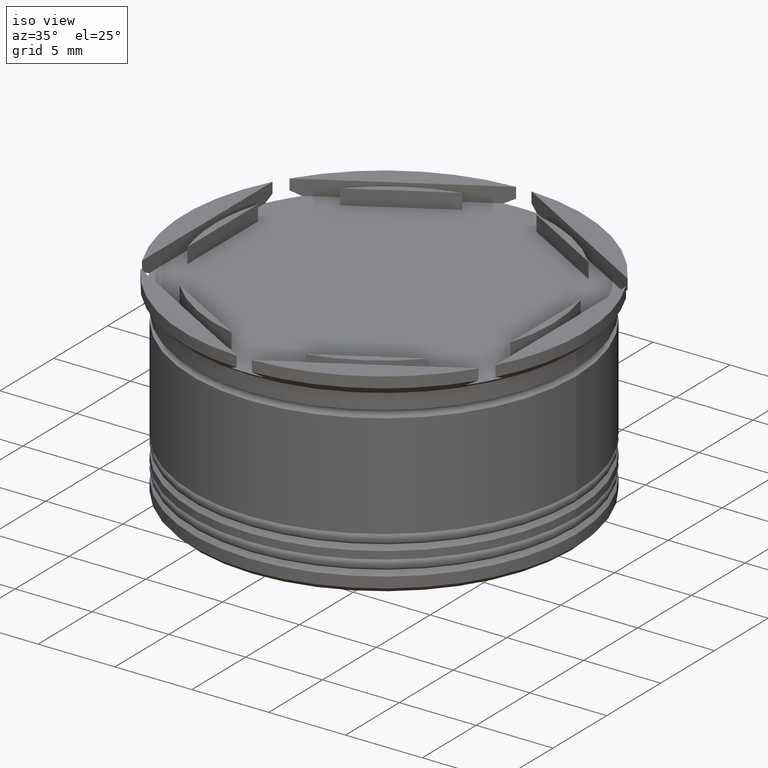
[diagram: clean part render]
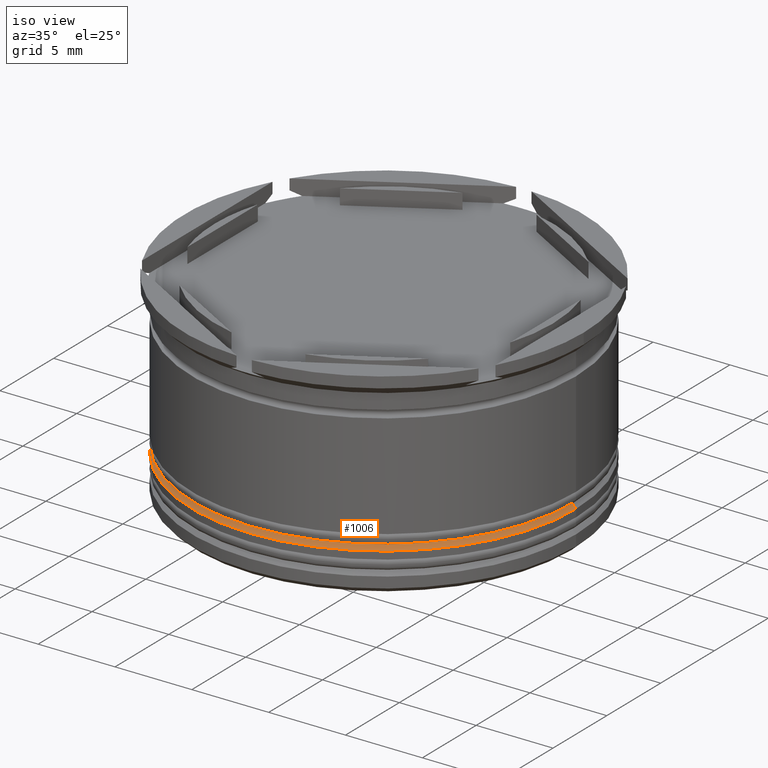
[diagram: same view with one face highlighted and labeled with its STEP entity id]
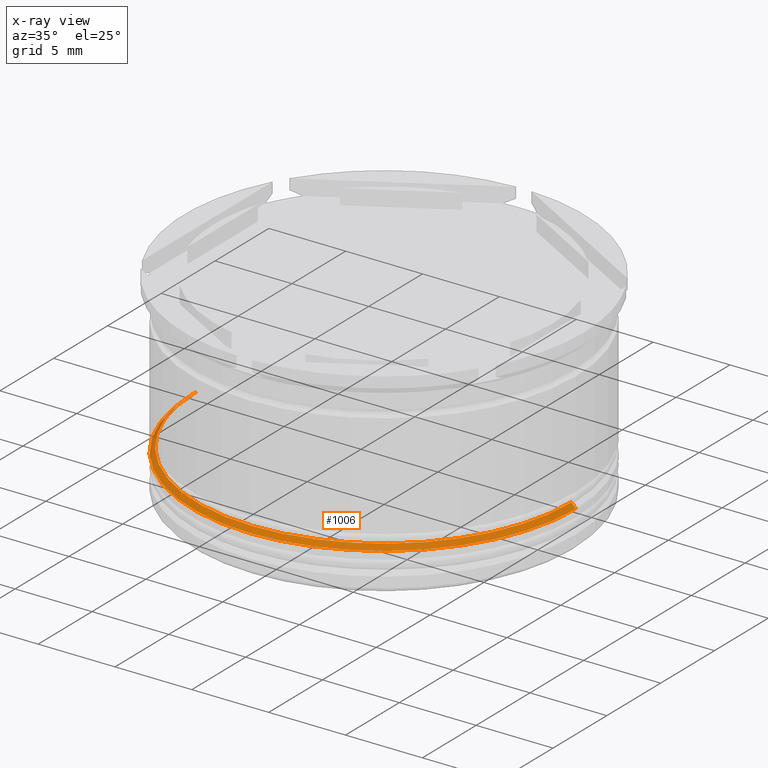
[diagram: x-ray of the same camera — body ghosted, the highlighted face saturated]
A machine part, iso view. The second image highlights one B-rep face of the part: STEP entity #1006.
The next image is the same camera in x-ray: the body ghosted, the highlighted face saturated — about 2% of this face is hidden behind the body in this view.
In plain terms, the highlighted conical surface has half-angle 45 deg.
Its self-contained STEP definition (entity closure, byte-faithful):
#80 = DIRECTION ( 'NONE',  ( -1.000000000000000000, 0.000000000000000000, 0.000000000000000000 ) ) ;
#205 = CARTESIAN_POINT ( 'NONE',  ( 11.99999999999999112, 1.469576158976822961E-15, -10.00000000000000178 ) ) ;
#218 = DIRECTION ( 'NONE',  ( 0.000000000000000000, 0.000000000000000000, -1.000000000000000000 ) ) ;
#245 = CARTESIAN_POINT ( 'NONE',  ( 0.000000000000000000, 0.000000000000000000, -10.50000000000000533 ) ) ;
#314 = CARTESIAN_POINT ( 'NONE',  ( 0.000000000000000000, 0.000000000000000000, -10.20000000000000995 ) ) ;
#328 = EDGE_LOOP ( 'NONE', ( #2169, #904, #1734, #1890 ) ) ;
#397 = CARTESIAN_POINT ( 'NONE',  ( -12.20000000000000107, 1.494069094959771056E-15, -10.20000000000000995 ) ) ;
#442 = VERTEX_POINT ( 'NONE', #1554 ) ;
#561 = VECTOR ( 'NONE', #956, 1000.000000000000000 ) ;
#619 = CARTESIAN_POINT ( 'NONE',  ( -11.99999999999999112, 0.000000000000000000, -10.00000000000000178 ) ) ;
#628 = FACE_OUTER_BOUND ( 'NONE', #328, .T. ) ;
#651 = VECTOR ( 'NONE', #748, 1000.000000000000000 ) ;
#748 = DIRECTION ( 'NONE',  ( 0.7071067811865512365, 8.659560562354978464E-17, -0.7071067811865439090 ) ) ;
#753 = CONICAL_SURFACE ( 'NONE', #1186, 11.99999999999999112, 0.7853981633974533860 ) ;
#785 = CARTESIAN_POINT ( 'NONE',  ( 0.000000000000000000, 0.000000000000000000, -10.00000000000000178 ) ) ;
#791 = DIRECTION ( 'NONE',  ( -1.000000000000000000, 0.000000000000000000, 0.000000000000000000 ) ) ;
#873 = AXIS2_PLACEMENT_3D ( 'NONE', #245, #987, #791 ) ;
#904 = ORIENTED_EDGE ( 'NONE', *, *, #1153, .F. ) ;
#937 = LINE ( 'NONE', #619, #561 ) ;
#956 = DIRECTION ( 'NONE',  ( -0.7071067811865512365, 0.000000000000000000, -0.7071067811865439090 ) ) ;
#987 = DIRECTION ( 'NONE',  ( 0.000000000000000000, 0.000000000000000000, -1.000000000000000000 ) ) ;
#1006 = ADVANCED_FACE ( 'NONE', ( #628 ), #753, .T. ) ;
#1032 = EDGE_CURVE ( 'NONE', #1407, #442, #937, .T. ) ;
#1153 = EDGE_CURVE ( 'NONE', #1407, #1863, #2302, .T. ) ;
#1186 = AXIS2_PLACEMENT_3D ( 'NONE', #785, #218, #80 ) ;
#1261 = AXIS2_PLACEMENT_3D ( 'NONE', #314, #2328, #2126 ) ;
#1282 = LINE ( 'NONE', #205, #651 ) ;
#1407 = VERTEX_POINT ( 'NONE', #397 ) ;
#1554 = CARTESIAN_POINT ( 'NONE',  ( -12.50000000000000000, 1.530808498934191521E-15, -10.50000000000000533 ) ) ;
#1610 = CARTESIAN_POINT ( 'NONE',  ( 12.20000000000000107, 0.000000000000000000, -10.20000000000000995 ) ) ;
#1652 = EDGE_CURVE ( 'NONE', #1863, #2095, #1282, .T. ) ;
#1734 = ORIENTED_EDGE ( 'NONE', *, *, #1032, .T. ) ;
#1863 = VERTEX_POINT ( 'NONE', #1610 ) ;
#1890 = ORIENTED_EDGE ( 'NONE', *, *, #2201, .F. ) ;
#2095 = VERTEX_POINT ( 'NONE', #2275 ) ;
#2126 = DIRECTION ( 'NONE',  ( -1.000000000000000000, 0.000000000000000000, 0.000000000000000000 ) ) ;
#2169 = ORIENTED_EDGE ( 'NONE', *, *, #1652, .F. ) ;
#2201 = EDGE_CURVE ( 'NONE', #2095, #442, #2343, .T. ) ;
#2275 = CARTESIAN_POINT ( 'NONE',  ( 12.50000000000000000, 0.000000000000000000, -10.50000000000000533 ) ) ;
#2302 = CIRCLE ( 'NONE', #1261, 12.20000000000000107 ) ;
#2328 = DIRECTION ( 'NONE',  ( -0.000000000000000000, -0.000000000000000000, 1.000000000000000000 ) ) ;
#2343 = CIRCLE ( 'NONE', #873, 12.50000000000000000 ) ;